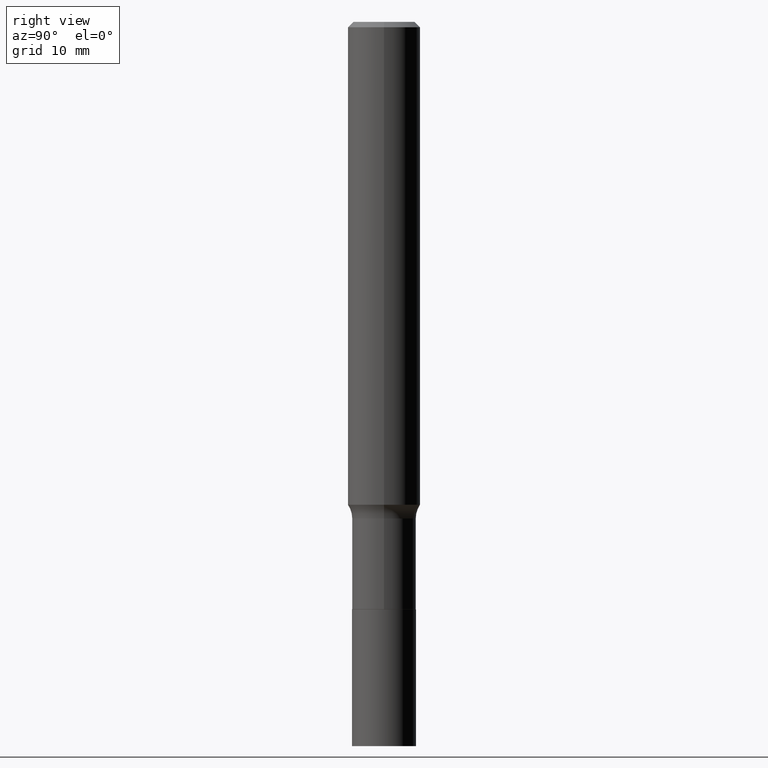
[diagram: clean part render]
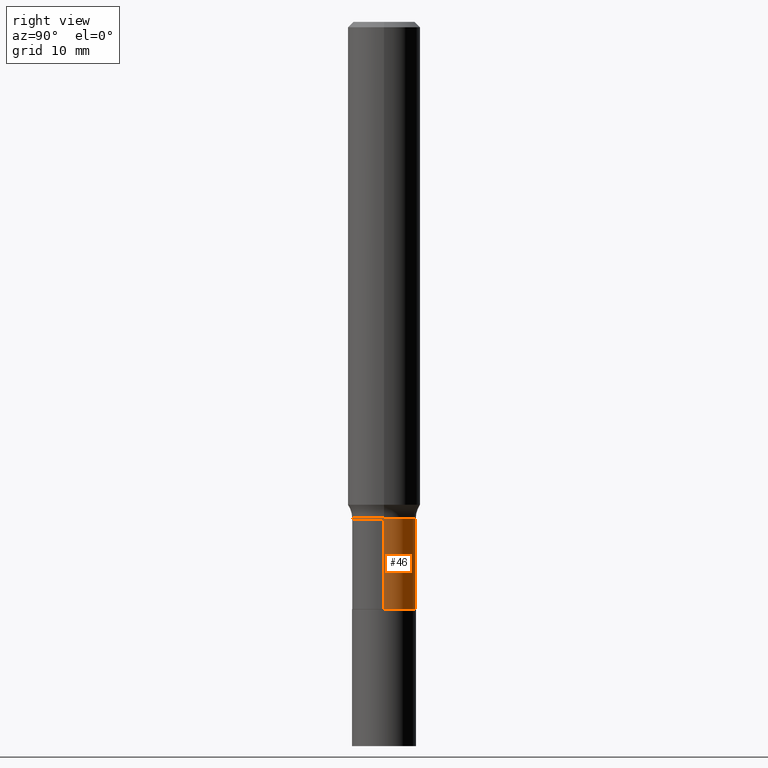
[diagram: same view with one face highlighted and labeled with its STEP entity id]
A machine part, right view. The second image highlights one B-rep face of the part: STEP entity #46.
In plain terms, the highlighted cylindrical surface (edge-blend (fillet) strip) has radius 2.6505 mm, axis along (-0, 0, 1).
Its self-contained STEP definition (entity closure, byte-faithful):
#1 = DIRECTION ( 'NONE',  ( -2.445468806185136877E-29, 3.491481338843145188E-15, 1.000000000000000000 ) ) ;
#5 = EDGE_CURVE ( 'NONE', #106, #204, #9, .T. ) ;
#9 = CIRCLE ( 'NONE', #270, 0.1043499999999999844 ) ;
#28 = VECTOR ( 'NONE', #1, 39.37007874015748143 ) ;
#31 = CARTESIAN_POINT ( 'NONE',  ( -0.1043499999999999567, -5.430789366041250005E-15, -1.619900000000000340 ) ) ;
#44 = CARTESIAN_POINT ( 'NONE',  ( 0.1043499999999999567, -6.384522776208574498E-15, -1.619900000000000340 ) ) ;
#46 = ADVANCED_FACE ( 'NONE', ( #392 ), #75, .T. ) ;
#66 = VERTEX_POINT ( 'NONE', #44 ) ;
#75 = CYLINDRICAL_SURFACE ( 'NONE', #111, 0.1043499999999999706 ) ;
#89 = DIRECTION ( 'NONE',  ( -2.445468806185136877E-29, 3.491481338843145188E-15, 1.000000000000000000 ) ) ;
#106 = VERTEX_POINT ( 'NONE', #444 ) ;
#111 = AXIS2_PLACEMENT_3D ( 'NONE', #165, #219, #183 ) ;
#115 = LINE ( 'NONE', #397, #28 ) ;
#129 = ORIENTED_EDGE ( 'NONE', *, *, #213, .F. ) ;
#139 = ORIENTED_EDGE ( 'NONE', *, *, #185, .T. ) ;
#147 = DIRECTION ( 'NONE',  ( -2.445468806185136597E-29, 3.491481338843145583E-15, 1.000000000000000000 ) ) ;
#165 = CARTESIAN_POINT ( 'NONE',  ( 0.000000000000000000, 0.000000000000000000, 0.000000000000000000 ) ) ;
#168 = EDGE_CURVE ( 'NONE', #66, #461, #330, .T. ) ;
#170 = DIRECTION ( 'NONE',  ( 1.000000000000000000, -6.982962677686263555E-15, 0.000000000000000000 ) ) ;
#183 = DIRECTION ( 'NONE',  ( 1.000000000000000000, -6.982962677686266711E-15, 4.876176775795936353E-29 ) ) ;
#185 = EDGE_CURVE ( 'NONE', #204, #461, #115, .T. ) ;
#204 = VERTEX_POINT ( 'NONE', #414 ) ;
#213 = EDGE_CURVE ( 'NONE', #106, #66, #329, .T. ) ;
#215 = VECTOR ( 'NONE', #89, 39.37007874015748143 ) ;
#219 = DIRECTION ( 'NONE',  ( -2.445468806185136597E-29, 3.491481338843145583E-15, 1.000000000000000000 ) ) ;
#236 = AXIS2_PLACEMENT_3D ( 'NONE', #321, #147, #403 ) ;
#270 = AXIS2_PLACEMENT_3D ( 'NONE', #428, #388, #170 ) ;
#296 = ORIENTED_EDGE ( 'NONE', *, *, #5, .T. ) ;
#321 = CARTESIAN_POINT ( 'NONE',  ( 3.961414919139303534E-29, -5.655850620792012876E-15, -1.619900000000000340 ) ) ;
#329 = LINE ( 'NONE', #452, #215 ) ;
#330 = CIRCLE ( 'NONE', #236, 0.1043499999999999567 ) ;
#333 = EDGE_LOOP ( 'NONE', ( #296, #139, #353, #129 ) ) ;
#353 = ORIENTED_EDGE ( 'NONE', *, *, #168, .F. ) ;
#388 = DIRECTION ( 'NONE',  ( -2.445468806185136597E-29, 3.491481338843145583E-15, 1.000000000000000000 ) ) ;
#392 = FACE_OUTER_BOUND ( 'NONE', #333, .T. ) ;
#397 = CARTESIAN_POINT ( 'NONE',  ( -0.1043499999999999706, 7.414513447656643348E-16, -5.132908766680992704E-30 ) ) ;
#403 = DIRECTION ( 'NONE',  ( 1.000000000000000000, -6.982962677686265922E-15, 0.000000000000000000 ) ) ;
#414 = CARTESIAN_POINT ( 'NONE',  ( -0.1043499999999999844, -5.430789366041250005E-15, -1.915700000000000180 ) ) ;
#428 = CARTESIAN_POINT ( 'NONE',  ( 4.684784592008867110E-29, -6.688630800821815408E-15, -1.915700000000000180 ) ) ;
#444 = CARTESIAN_POINT ( 'NONE',  ( 0.1043499999999999844, -7.417302956238376242E-15, -1.915700000000000180 ) ) ;
#452 = CARTESIAN_POINT ( 'NONE',  ( 0.1043499999999999706, -7.286721554165617206E-16, 5.088290465543058008E-30 ) ) ;
#461 = VERTEX_POINT ( 'NONE', #31 ) ;